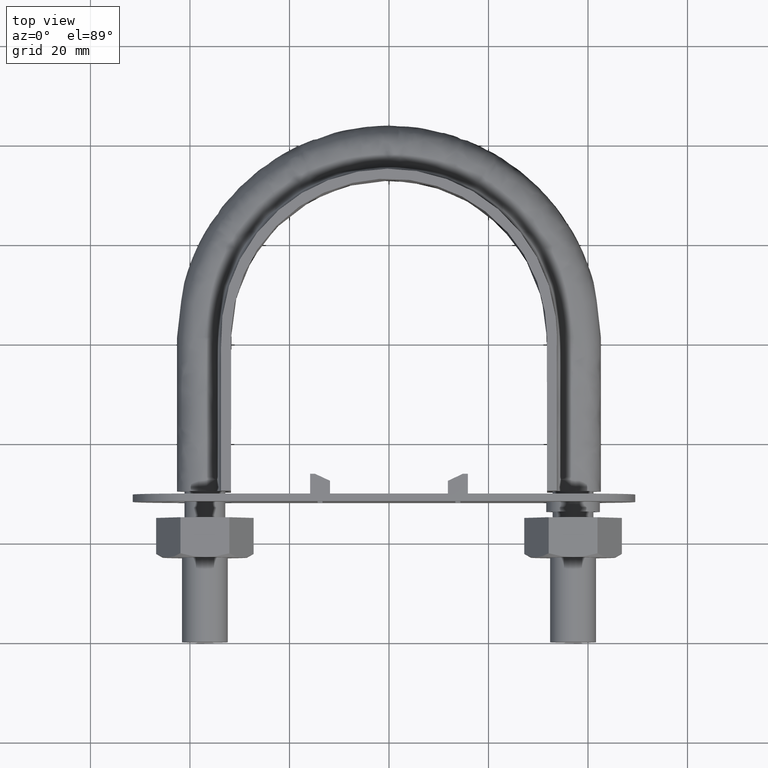
[diagram: clean part render]
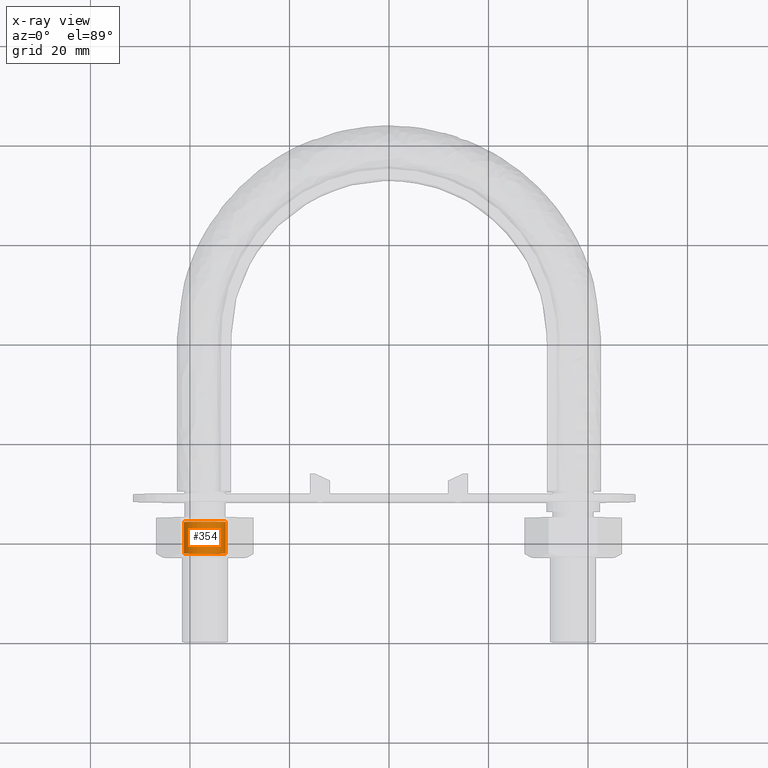
[diagram: x-ray — body ghosted, one internal face saturated and labeled with its STEP entity id]
A machine part, top view, then the same camera in x-ray: the body is ghosted and one INTERNAL B-rep face — a face not visible from any outside direction — is saturated and labeled: STEP entity #354.
In plain terms, the highlighted cylindrical surface (bore or boss wall) has radius 4.188 mm, axis along (-0, -1, -0).
Its self-contained STEP definition (entity closure, byte-faithful):
#354 = ADVANCED_FACE( '', ( #575, #576 ), #577, .F. );
#575 = FACE_OUTER_BOUND( '', #1503, .T. );
#576 = FACE_OUTER_BOUND( '', #1504, .T. );
#577 = CYLINDRICAL_SURFACE( '', #1505, 4.18799999999885 );
#1503 = EDGE_LOOP( '', ( #2198 ) );
#1504 = EDGE_LOOP( '', ( #2199 ) );
#1505 = AXIS2_PLACEMENT_3D( '', #2200, #2201, #2202 );
#2198 = ORIENTED_EDGE( '', *, *, #2566, .T. );
#2199 = ORIENTED_EDGE( '', *, *, #2565, .F. );
#2200 = CARTESIAN_POINT( '', ( -37.0000000000000, 25.0000000000000, 4.20421076424697E-015 ) );
#2201 = DIRECTION( '', ( -1.22460635382238E-016, -1.00000000000000, -1.83690953073357E-016 ) );
#2202 = DIRECTION( '', ( 0.866025403777276, -1.97899497742681E-016, 0.500000000012406 ) );
#2565 = EDGE_CURVE( '', #2923, #2923, #2924, .T. );
#2566 = EDGE_CURVE( '', #2925, #2925, #2926, .T. );
#2923 = VERTEX_POINT( '', #3704 );
#2924 = CIRCLE( '', #3705, 4.18799999999885 );
#2925 = VERTEX_POINT( '', #3706 );
#2926 = CIRCLE( '', #3707, 4.18799999999885 );
#3704 = CARTESIAN_POINT( '', ( -33.3730856089818, 17.8120000000007, 2.09400000005139 ) );
#3705 = AXIS2_PLACEMENT_3D( '', #4144, #4145, #4146 );
#3706 = CARTESIAN_POINT( '', ( -33.3730856089818, 24.1880000000001, 2.09400000005139 ) );
#3707 = AXIS2_PLACEMENT_3D( '', #4147, #4148, #4149 );
#4144 = CARTESIAN_POINT( '', ( -37.0000000000000, 17.8120000000007, 2.88384019355581E-015 ) );
#4145 = DIRECTION( '', ( 1.22460635382238E-016, 1.00000000000000, 1.83690953073357E-016 ) );
#4146 = DIRECTION( '', ( 0.866025403777276, -1.97899497742681E-016, 0.500000000012406 ) );
#4147 = CARTESIAN_POINT( '', ( -37.0000000000000, 24.1880000000001, 4.05505371035142E-015 ) );
#4148 = DIRECTION( '', ( 1.22460635382238E-016, 1.00000000000000, 1.83690953073357E-016 ) );
#4149 = DIRECTION( '', ( 0.866025403777276, -1.97899497742681E-016, 0.500000000012406 ) );